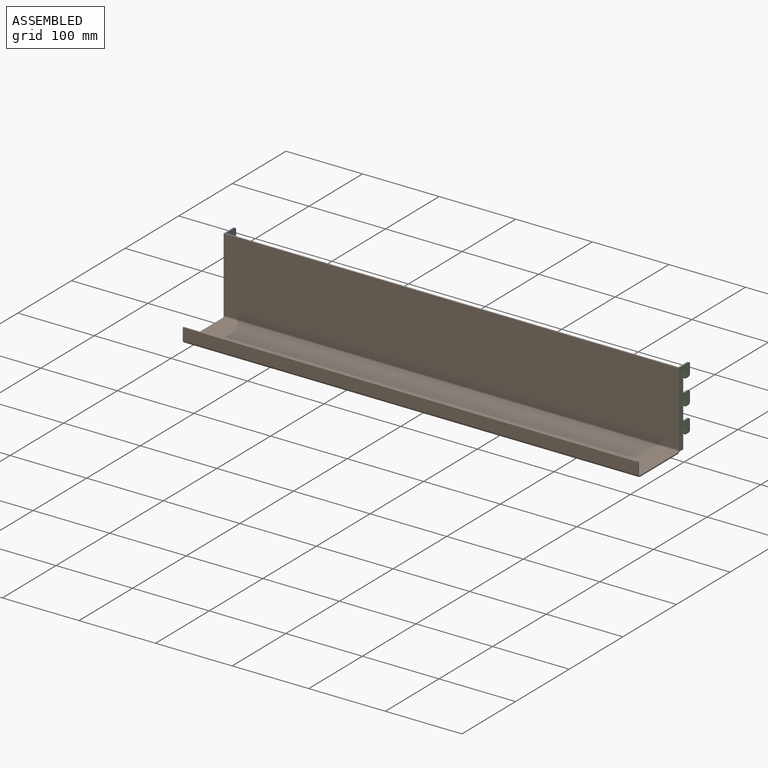
[diagram: assembled view]
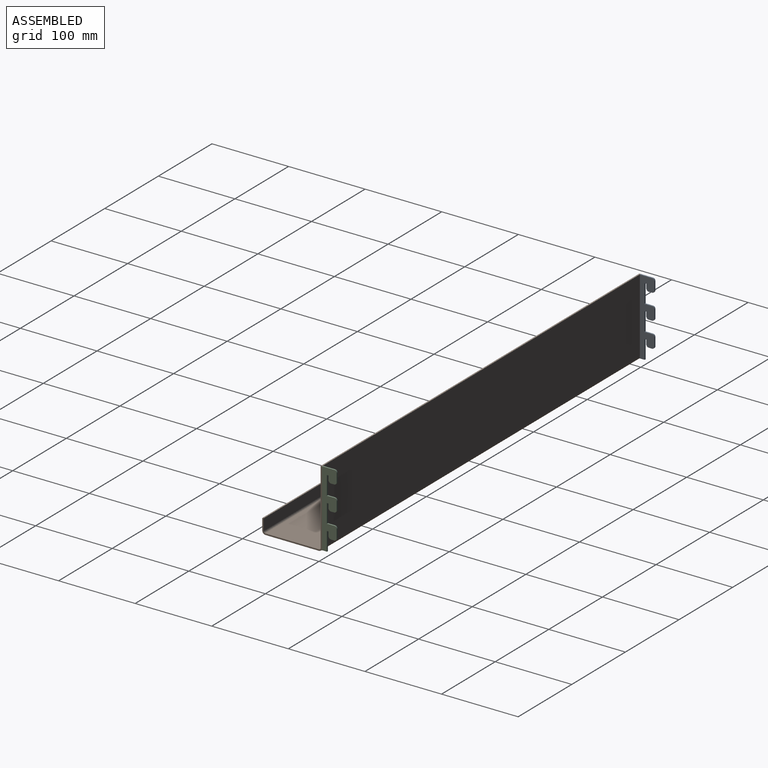
[diagram: assembled view, second angle]
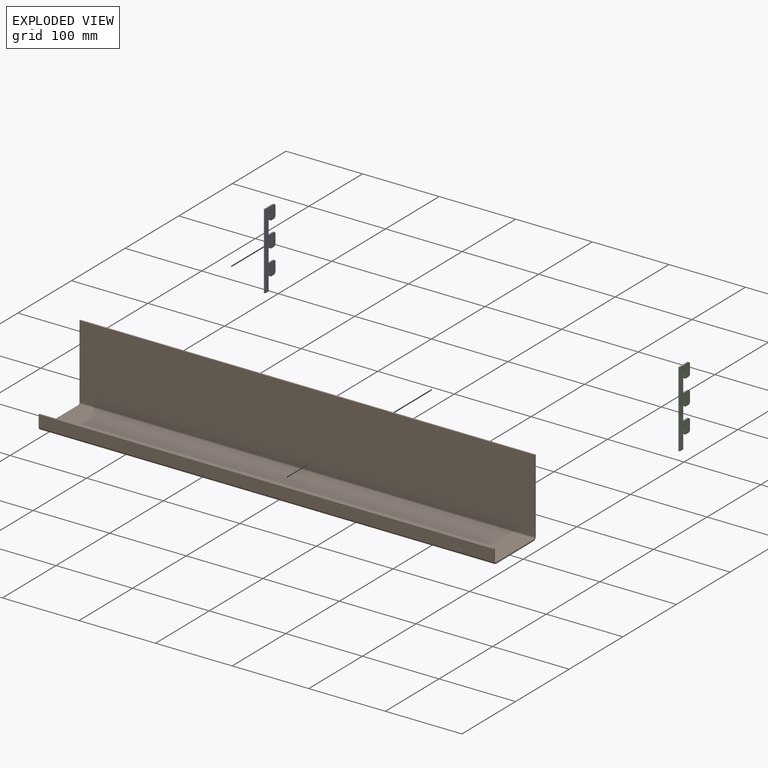
[diagram: exploded view]
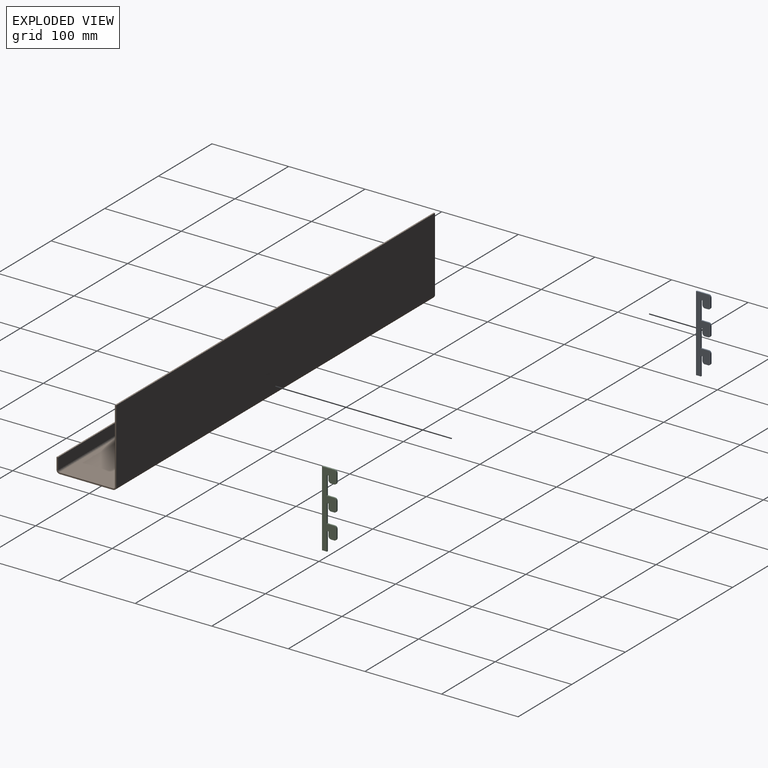
[diagram: exploded view, second angle]
ASSEMBLY  parts=3 mates=2
PART A: 37 faces, bbox 19.1x1.8x99.1 mm
  f0: plane 99.06x1.8mm, normal (-1,0,0), area 177.9mm2, adj f1,f34,f35,f36
  f1: plane 6.35x1.8mm, normal (0,0,-1), area 11.4mm2, adj f0,f2,f35,f36
  f2: plane 24.13x1.8mm, normal (1,0,0), area 43.3mm2, adj f1,f3,f35,f36
  f3: cylinder r=0.25mm len=1.8mm, axis (0,1,0), area 0.7mm2, adj f2,f4,f35,f36
  f4: plane 1.8x1.6mm, normal (0,0,-1), area 2.9mm2, adj f3,f5,f35,f36
  f5: cylinder r=0.25mm len=1.8mm, axis (0,1,0), area 0.7mm2, adj f4,f6,f35,f36
  f6: plane 5.21x1.8mm, normal (-1,0,0), area 9.4mm2, adj f5,f7,f35,f36
  f7: cylinder r=3.17mm len=3.18mm, axis (0,1,0), area 9mm2, adj f6,f8,f35,f36
  f8: plane 4.24x1.8mm, normal (0,0,-1), area 7.6mm2, adj f7,f9,f35,f36
  f9: cylinder r=3.17mm len=3.18mm, axis (0,1,0), area 9mm2, adj f8,f10,f35,f36
  f10: plane 10.92x1.8mm, normal (1,0,0), area 19.6mm2, adj f9,f11,f35,f36
  f11: cylinder r=3.17mm len=3.18mm, axis (0,1,0), area 9mm2, adj f10,f12,f35,f36
  f12: plane 9.53x1.8mm, normal (0,0,1), area 17.1mm2, adj f11,f13,f35,f36
  f13: plane 24.13x1.8mm, normal (1,0,0), area 43.3mm2, adj f12,f14,f35,f36
  f14: cylinder r=0.25mm len=1.8mm, axis (0,1,0), area 0.7mm2, adj f13,f15,f35,f36
  f15: plane 1.8x1.6mm, normal (0,0,-1), area 2.9mm2, adj f14,f16,f35,f36
  f16: cylinder r=0.25mm len=1.8mm, axis (0,1,0), area 0.7mm2, adj f15,f17,f35,f36
  f17: plane 5.21x1.8mm, normal (-1,0,0), area 9.4mm2, adj f16,f18,f35,f36
  f18: cylinder r=3.17mm len=3.18mm, axis (0,1,0), area 9mm2, adj f17,f19,f35,f36
  f19: plane 4.24x1.8mm, normal (0,0,-1), area 7.6mm2, adj f18,f20,f35,f36
  f20: cylinder r=3.17mm len=3.18mm, axis (0,1,0), area 9mm2, adj f19,f21,f35,f36
  f21: plane 10.92x1.8mm, normal (1,0,0), area 19.6mm2, adj f20,f22,f35,f36
  f22: cylinder r=3.17mm len=3.18mm, axis (0,1,0), area 9mm2, adj f21,f23,f35,f36
  f23: plane 9.53x1.8mm, normal (0,0,1), area 17.1mm2, adj f22,f24,f35,f36
  f24: plane 24.13x1.8mm, normal (1,0,0), area 43.3mm2, adj f23,f25,f35,f36
  f25: cylinder r=0.25mm len=1.8mm, axis (0,1,0), area 0.7mm2, adj f24,f26,f35,f36
  f26: plane 1.8x1.6mm, normal (0,0,-1), area 2.9mm2, adj f25,f27,f35,f36
  f27: cylinder r=0.25mm len=1.8mm, axis (0,1,0), area 0.7mm2, adj f26,f28,f35,f36
  f28: plane 5.21x1.8mm, normal (-1,0,0), area 9.4mm2, adj f27,f29,f35,f36
  f29: cylinder r=3.17mm len=3.18mm, axis (0,1,0), area 9mm2, adj f28,f30,f35,f36
  f30: plane 4.24x1.8mm, normal (0,0,-1), area 7.6mm2, adj f29,f31,f35,f36
  f31: cylinder r=3.17mm len=3.18mm, axis (0,1,0), area 9mm2, adj f30,f32,f35,f36
  f32: plane 10.92x1.8mm, normal (1,0,0), area 19.6mm2, adj f31,f33,f35,f36
  f33: cylinder r=3.17mm len=3.18mm, axis (0,1,0), area 9mm2, adj f32,f34,f35,f36
  f34: plane 15.88x1.8mm, normal (0,0,1), area 28.5mm2, adj f0,f33,f35,f36
  f35: plane 99.06x19.05mm, normal (0,-1,0), area 1213.1mm2, adj f0,f1,f2,f3,f4,f5,f6,f7
  f36: plane 99.06x19.05mm, normal (0,1,0), area 1213.1mm2, adj f0,f1,f2,f3,f4,f5,f6,f7
PART B: 22 faces, bbox 594.4x78x100.9 mm
  f0: plane 96.77x1.8mm, normal (1,0,0), area 173.8mm2, adj f2,f3,f4,f18
  f1: plane 96.77x1.8mm, normal (-1,0,0), area 173.8mm2, adj f2,f3,f4,f19
  f2: plane 594.36x1.8mm, normal (0,0,1), area 1067.3mm2, adj f0,f1,f3,f4
  f3: plane 594.36x96.77mm, normal (0,1,0), area 57518.6mm2, adj f0,f1,f2,f20
  f4: plane 594.36x96.77mm, normal (0,-1,0), area 57518.6mm2, adj f0,f1,f2,f21
  f5: plane 69.83x1.8mm, normal (-1,0,0), area 125.4mm2, adj f7,f8,f15,f19
  f6: plane 69.83x1.8mm, normal (1,0,0), area 125.4mm2, adj f7,f8,f14,f18
  f7: plane 594.36x69.83mm, normal (0,0,-1), area 41505.5mm2, adj f5,f6,f16,f20
  f8: plane 594.36x69.83mm, normal (0,0,1), area 41505.5mm2, adj f5,f6,f17,f21
  f9: plane 594.36x1.8mm, normal (0,0,1), area 1067.3mm2, adj f10,f11,f12,f13
  f10: plane 14.97x1.8mm, normal (-1,0,0), area 26.9mm2, adj f9,f12,f13,f15
  f11: plane 14.97x1.8mm, normal (1,0,0), area 26.9mm2, adj f9,f12,f13,f14
  f12: plane 594.36x14.97mm, normal (0,-1,0), area 8896.5mm2, adj f9,f10,f11,f16
  f13: plane 594.36x14.97mm, normal (0,1,0), area 8896.5mm2, adj f9,f10,f11,f17
  f14: plane 4.08x4.08mm, normal (1,0,0), area 9mm2, adj f6,f11,f16,f17
  f15: plane 4.08x4.08mm, normal (-1,0,0), area 9mm2, adj f5,f10,f16,f17
  f16: cylinder r=4.08mm len=594.36mm, axis (1,0,0), area 3810.8mm2, adj f7,f12,f14,f15
  f17: cylinder r=2.29mm len=594.36mm, axis (1,0,0), area 2134.3mm2, adj f8,f13,f14,f15
  f18: plane 4.08x4.08mm, normal (1,0,0), area 9mm2, adj f0,f6,f20,f21
  f19: plane 4.08x4.08mm, normal (-1,0,0), area 9mm2, adj f1,f5,f20,f21
  f20: cylinder r=4.08mm len=594.36mm, axis (1,0,0), area 3810.8mm2, adj f3,f7,f18,f19
  f21: cylinder r=2.29mm len=594.36mm, axis (1,0,0), area 2134.3mm2, adj f4,f8,f18,f19
PART C: same geometry as A
PLACE A rot(axis=(0,0,1),90deg) t=(0,6.35,33.02)mm
PLACE B at identity
PLACE C rot(axis=(0,0,1),90deg) t=(592.56,6.35,33.02)mm
MATE fastened C.f0 <-> B.f3  axis (0,-1,0) through (594.36,0,99.06)mm
MATE fastened A.f0 <-> B.f3  axis (0,1,0) through (0,0,99.06)mm
